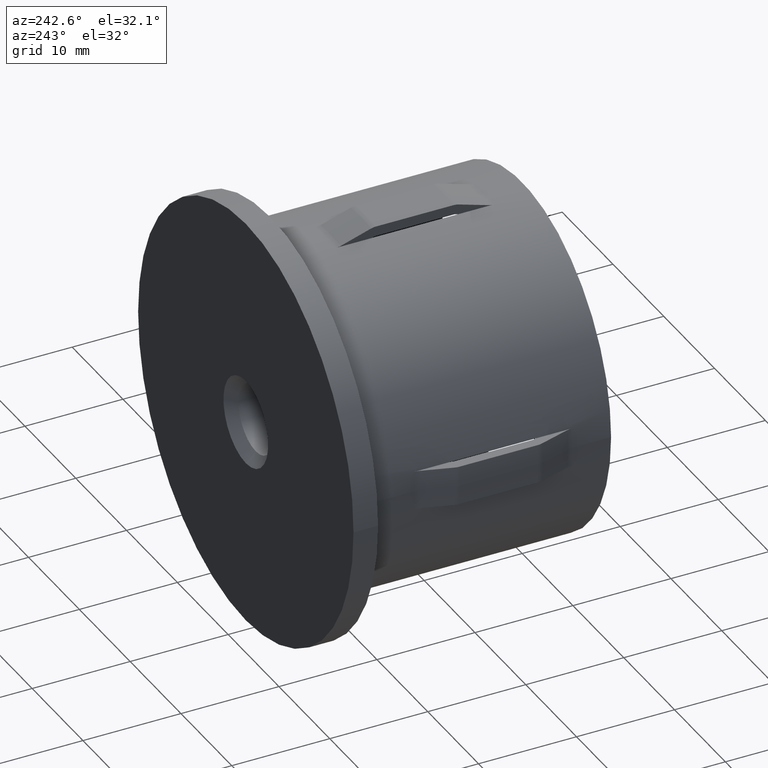
[diagram: clean part render]
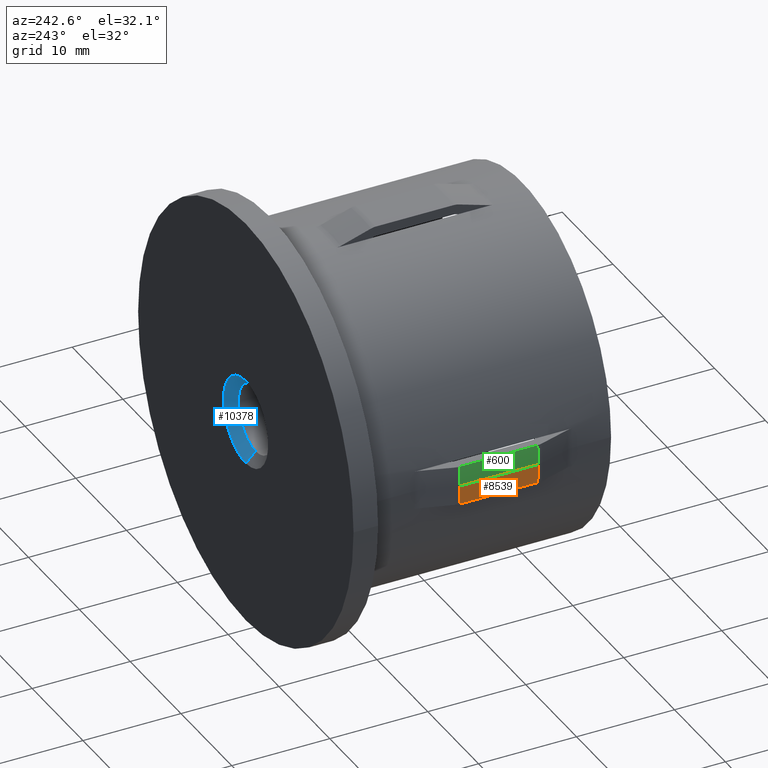
[diagram: same view with three faces highlighted in distinct colors, each labeled with its STEP entity id]
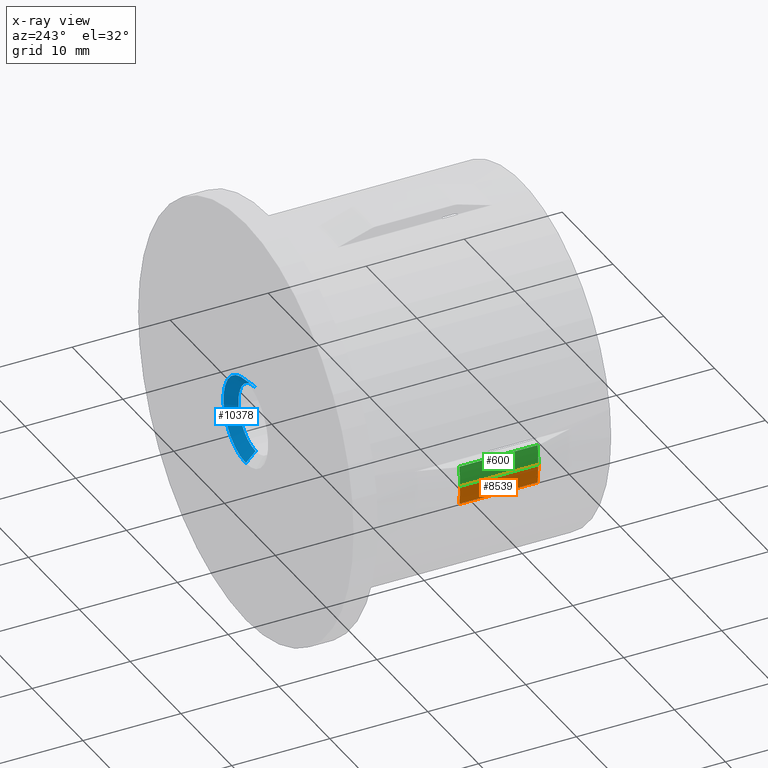
[diagram: x-ray of the same camera — body ghosted, the three highlighted faces saturated]
A machine part, auxiliary view with three faces highlighted in distinct colors.
The next image is the same camera in x-ray (body ghosted, the three faces saturated) — at least one of them is partly hidden behind the body in this view.
Their STEP definitions:

[orange] entity #8539 — the highlighted cylindrical surface (partial cylindrical patch) has radius 18.6 mm, axis along (-0, 1, -0).
#389 = DIRECTION ( 'NONE',  ( -1.714505518806297100E-016, 1.000000000000000000, -0.0000000000000000000 ) ) ;
#692 = CIRCLE ( 'NONE', #6778, 18.60000000000000100 ) ;
#855 = CARTESIAN_POINT ( 'NONE',  ( -18.49216050114209500, 20.00000000000000000, -2.000000000000000000 ) ) ;
#1584 = CARTESIAN_POINT ( 'NONE',  ( -18.59999999999999800, 28.19999999999999600, 0.0000000000000000000 ) ) ;
#1776 = DIRECTION ( 'NONE',  ( -1.000000000000000000, -1.865294060190115500E-016, 0.0000000000000000000 ) ) ;
#1817 = AXIS2_PLACEMENT_3D ( 'NONE', #9284, #15569, #1776 ) ;
#2103 = DIRECTION ( 'NONE',  ( -0.0000000000000000000, -1.000000000000000000, -0.0000000000000000000 ) ) ;
#2144 = AXIS2_PLACEMENT_3D ( 'NONE', #5916, #8446, #14865 ) ;
#2698 = CYLINDRICAL_SURFACE ( 'NONE', #2144, 18.59999999999999800 ) ;
#2854 = EDGE_CURVE ( 'NONE', #12684, #11023, #13670, .T. ) ;
#3473 = FACE_OUTER_BOUND ( 'NONE', #8141, .T. ) ;
#4294 = VERTEX_POINT ( 'NONE', #15205 ) ;
#4572 = ORIENTED_EDGE ( 'NONE', *, *, #11466, .F. ) ;
#4832 = VECTOR ( 'NONE', #2103, 1000.000000000000000 ) ;
#5916 = CARTESIAN_POINT ( 'NONE',  ( -2.449293598294708900E-016, 28.19999999999999900, 0.0000000000000000000 ) ) ;
#6154 = VECTOR ( 'NONE', #389, 1000.000000000000000 ) ;
#6778 = AXIS2_PLACEMENT_3D ( 'NONE', #15107, #15279, #8969 ) ;
#6918 = CARTESIAN_POINT ( 'NONE',  ( -18.49216050114209500, 7.999999999999992900, -2.000000000000000000 ) ) ;
#8141 = EDGE_LOOP ( 'NONE', ( #10331, #11269, #4572, #15637 ) ) ;
#8338 = EDGE_CURVE ( 'NONE', #11023, #4294, #14669, .T. ) ;
#8446 = DIRECTION ( 'NONE',  ( -1.714505518806297100E-016, 1.000000000000000000, -0.0000000000000000000 ) ) ;
#8539 = ADVANCED_FACE ( 'NONE', ( #3473 ), #2698, .T. ) ;
#8969 = DIRECTION ( 'NONE',  ( -1.000000000000000000, -1.865294060190115000E-016, 0.0000000000000000000 ) ) ;
#9284 = CARTESIAN_POINT ( 'NONE',  ( 3.218371788159250600E-015, 7.999999999999992900, 0.0000000000000000000 ) ) ;
#9501 = LINE ( 'NONE', #1584, #6154 ) ;
#9790 = CARTESIAN_POINT ( 'NONE',  ( -18.49216050114209500, 15.99999999999999300, -2.000000000000000000 ) ) ;
#10331 = ORIENTED_EDGE ( 'NONE', *, *, #8338, .T. ) ;
#10974 = EDGE_CURVE ( 'NONE', #4294, #12640, #9501, .T. ) ;
#11023 = VERTEX_POINT ( 'NONE', #6918 ) ;
#11269 = ORIENTED_EDGE ( 'NONE', *, *, #10974, .T. ) ;
#11466 = EDGE_CURVE ( 'NONE', #12684, #12640, #692, .T. ) ;
#12640 = VERTEX_POINT ( 'NONE', #14468 ) ;
#12684 = VERTEX_POINT ( 'NONE', #9790 ) ;
#13670 = LINE ( 'NONE', #855, #4832 ) ;
#14468 = CARTESIAN_POINT ( 'NONE',  ( -18.59999999999999800, 15.99999999999999300, 0.0000000000000000000 ) ) ;
#14669 = CIRCLE ( 'NONE', #1817, 18.59999999999999800 ) ;
#14865 = DIRECTION ( 'NONE',  ( -1.000000000000000000, -1.865294060190115500E-016, 0.0000000000000000000 ) ) ;
#15107 = CARTESIAN_POINT ( 'NONE',  ( 1.846767373114211700E-015, 15.99999999999999600, 0.0000000000000000000 ) ) ;
#15205 = CARTESIAN_POINT ( 'NONE',  ( -18.59999999999999400, 7.999999999999989300, 0.0000000000000000000 ) ) ;
#15279 = DIRECTION ( 'NONE',  ( -1.714505518806297100E-016, 1.000000000000000000, -0.0000000000000000000 ) ) ;
#15569 = DIRECTION ( 'NONE',  ( -1.714505518806297100E-016, 1.000000000000000000, -0.0000000000000000000 ) ) ;
#15637 = ORIENTED_EDGE ( 'NONE', *, *, #2854, .T. ) ;

[blue] entity #10378 — the highlighted conical surface has half-angle 45 deg.
#66 = EDGE_CURVE ( 'NONE', #13186, #4601, #11563, .T. ) ;
#112 = FACE_OUTER_BOUND ( 'NONE', #8588, .T. ) ;
#187 = CARTESIAN_POINT ( 'NONE',  ( 0.0000000000000000000, 28.19999999999999600, 0.0000000000000000000 ) ) ;
#676 = CARTESIAN_POINT ( 'NONE',  ( 0.0000000000000000000, 27.19999999999998900, -3.399999999999987900 ) ) ;
#926 = AXIS2_PLACEMENT_3D ( 'NONE', #187, #16221, #3949 ) ;
#1140 = CARTESIAN_POINT ( 'NONE',  ( 5.388445916248347100E-016, 28.19999999999999600, -4.399999999999994100 ) ) ;
#1473 = CARTESIAN_POINT ( 'NONE',  ( 0.0000000000000000000, 27.19999999999998900, 0.0000000000000000000 ) ) ;
#2046 = AXIS2_PLACEMENT_3D ( 'NONE', #11468, #13943, #8834 ) ;
#3447 = LINE ( 'NONE', #9289, #13061 ) ;
#3949 = DIRECTION ( 'NONE',  ( 0.0000000000000000000, 0.0000000000000000000, 1.000000000000000000 ) ) ;
#4039 = DIRECTION ( 'NONE',  ( 0.0000000000000000000, 0.0000000000000000000, -1.000000000000000000 ) ) ;
#4323 = CARTESIAN_POINT ( 'NONE',  ( 0.0000000000000000000, 28.19999999999999600, 4.399999999999994100 ) ) ;
#4601 = VERTEX_POINT ( 'NONE', #7841 ) ;
#5177 = DIRECTION ( 'NONE',  ( -0.0000000000000000000, 1.000000000000000000, -0.0000000000000000000 ) ) ;
#5569 = CONICAL_SURFACE ( 'NONE', #926, 4.399999999999994100, 0.7853981633974473900 ) ;
#5788 = EDGE_CURVE ( 'NONE', #13654, #13552, #13217, .T. ) ;
#6363 = ORIENTED_EDGE ( 'NONE', *, *, #5788, .F. ) ;
#6852 = CARTESIAN_POINT ( 'NONE',  ( 4.163799117100986300E-016, 27.19999999999998900, 3.399999999999987900 ) ) ;
#7841 = CARTESIAN_POINT ( 'NONE',  ( 0.0000000000000000000, 28.19999999999999600, 4.399999999999994100 ) ) ;
#8588 = EDGE_LOOP ( 'NONE', ( #15421, #6363, #12908, #11028 ) ) ;
#8834 = DIRECTION ( 'NONE',  ( 1.000000000000000000, 0.0000000000000000000, 0.0000000000000000000 ) ) ;
#9289 = CARTESIAN_POINT ( 'NONE',  ( 5.388445916248347100E-016, 28.19999999999999600, -4.399999999999994100 ) ) ;
#9419 = DIRECTION ( 'NONE',  ( 0.0000000000000000000, 0.7071067811865482400, 0.7071067811865469100 ) ) ;
#9841 = EDGE_CURVE ( 'NONE', #13552, #13186, #3447, .T. ) ;
#10378 = ADVANCED_FACE ( 'NONE', ( #112 ), #5569, .F. ) ;
#10759 = DIRECTION ( 'NONE',  ( 8.659560562354926700E-017, 0.7071067811865482400, -0.7071067811865469100 ) ) ;
#11028 = ORIENTED_EDGE ( 'NONE', *, *, #66, .F. ) ;
#11468 = CARTESIAN_POINT ( 'NONE',  ( 0.0000000000000000000, 28.19999999999999600, 0.0000000000000000000 ) ) ;
#11563 = CIRCLE ( 'NONE', #2046, 4.399999999999995000 ) ;
#11820 = EDGE_CURVE ( 'NONE', #13654, #4601, #12822, .T. ) ;
#12822 = LINE ( 'NONE', #4323, #15370 ) ;
#12908 = ORIENTED_EDGE ( 'NONE', *, *, #11820, .T. ) ;
#13061 = VECTOR ( 'NONE', #10759, 999.9999999999998900 ) ;
#13186 = VERTEX_POINT ( 'NONE', #1140 ) ;
#13217 = CIRCLE ( 'NONE', #15057, 3.399999999999987900 ) ;
#13552 = VERTEX_POINT ( 'NONE', #676 ) ;
#13654 = VERTEX_POINT ( 'NONE', #6852 ) ;
#13943 = DIRECTION ( 'NONE',  ( 1.714505518806297100E-016, -1.000000000000000000, 0.0000000000000000000 ) ) ;
#15057 = AXIS2_PLACEMENT_3D ( 'NONE', #1473, #5177, #4039 ) ;
#15370 = VECTOR ( 'NONE', #9419, 999.9999999999998900 ) ;
#15421 = ORIENTED_EDGE ( 'NONE', *, *, #9841, .F. ) ;
#16221 = DIRECTION ( 'NONE',  ( -0.0000000000000000000, 1.000000000000000000, -0.0000000000000000000 ) ) ;

[green] entity #600 — the highlighted cylindrical surface (partial cylindrical patch) has radius 18.6 mm, axis along (-0, 1, -0).
#305 = DIRECTION ( 'NONE',  ( -1.714505518806297100E-016, 1.000000000000000000, -0.0000000000000000000 ) ) ;
#389 = DIRECTION ( 'NONE',  ( -1.714505518806297100E-016, 1.000000000000000000, -0.0000000000000000000 ) ) ;
#551 = EDGE_LOOP ( 'NONE', ( #1607, #9645, #11364, #8015 ) ) ;
#600 = ADVANCED_FACE ( 'NONE', ( #3515 ), #1932, .T. ) ;
#1196 = DIRECTION ( 'NONE',  ( -1.714505518806297100E-016, 1.000000000000000000, -0.0000000000000000000 ) ) ;
#1584 = CARTESIAN_POINT ( 'NONE',  ( -18.59999999999999800, 28.19999999999999600, 0.0000000000000000000 ) ) ;
#1607 = ORIENTED_EDGE ( 'NONE', *, *, #10974, .F. ) ;
#1802 = AXIS2_PLACEMENT_3D ( 'NONE', #5842, #4422, #14516 ) ;
#1818 = CIRCLE ( 'NONE', #8636, 18.59999999999999800 ) ;
#1932 = CYLINDRICAL_SURFACE ( 'NONE', #1802, 18.59999999999999800 ) ;
#2811 = CARTESIAN_POINT ( 'NONE',  ( 3.218371788159250600E-015, 7.999999999999992900, 0.0000000000000000000 ) ) ;
#2944 = VERTEX_POINT ( 'NONE', #7495 ) ;
#3515 = FACE_OUTER_BOUND ( 'NONE', #551, .T. ) ;
#4294 = VERTEX_POINT ( 'NONE', #15205 ) ;
#4422 = DIRECTION ( 'NONE',  ( -1.714505518806297100E-016, 1.000000000000000000, -0.0000000000000000000 ) ) ;
#5842 = CARTESIAN_POINT ( 'NONE',  ( -2.449293598294708900E-016, 28.19999999999999900, 0.0000000000000000000 ) ) ;
#6150 = DIRECTION ( 'NONE',  ( -1.000000000000000000, -1.865294060190115000E-016, 0.0000000000000000000 ) ) ;
#6154 = VECTOR ( 'NONE', #389, 1000.000000000000000 ) ;
#6260 = CARTESIAN_POINT ( 'NONE',  ( 1.846767373114211700E-015, 15.99999999999999600, 0.0000000000000000000 ) ) ;
#6539 = EDGE_CURVE ( 'NONE', #4294, #2944, #1818, .T. ) ;
#7495 = CARTESIAN_POINT ( 'NONE',  ( -18.49216050114209500, 7.999999999999992900, 2.000000000000000000 ) ) ;
#7885 = VERTEX_POINT ( 'NONE', #15286 ) ;
#8015 = ORIENTED_EDGE ( 'NONE', *, *, #8128, .F. ) ;
#8128 = EDGE_CURVE ( 'NONE', #12640, #7885, #14282, .T. ) ;
#8636 = AXIS2_PLACEMENT_3D ( 'NONE', #2811, #305, #9275 ) ;
#9275 = DIRECTION ( 'NONE',  ( -1.000000000000000000, -1.865294060190115500E-016, 0.0000000000000000000 ) ) ;
#9501 = LINE ( 'NONE', #1584, #6154 ) ;
#9645 = ORIENTED_EDGE ( 'NONE', *, *, #6539, .T. ) ;
#10543 = AXIS2_PLACEMENT_3D ( 'NONE', #6260, #1196, #6150 ) ;
#10663 = CARTESIAN_POINT ( 'NONE',  ( -18.49216050114209500, 20.00000000000000000, 2.000000000000000000 ) ) ;
#10974 = EDGE_CURVE ( 'NONE', #4294, #12640, #9501, .T. ) ;
#11364 = ORIENTED_EDGE ( 'NONE', *, *, #11618, .F. ) ;
#11452 = VECTOR ( 'NONE', #14456, 1000.000000000000000 ) ;
#11618 = EDGE_CURVE ( 'NONE', #7885, #2944, #14784, .T. ) ;
#12640 = VERTEX_POINT ( 'NONE', #14468 ) ;
#14282 = CIRCLE ( 'NONE', #10543, 18.60000000000000100 ) ;
#14456 = DIRECTION ( 'NONE',  ( -0.0000000000000000000, -1.000000000000000000, -0.0000000000000000000 ) ) ;
#14468 = CARTESIAN_POINT ( 'NONE',  ( -18.59999999999999800, 15.99999999999999300, 0.0000000000000000000 ) ) ;
#14516 = DIRECTION ( 'NONE',  ( -1.000000000000000000, -1.865294060190115500E-016, 0.0000000000000000000 ) ) ;
#14784 = LINE ( 'NONE', #10663, #11452 ) ;
#15205 = CARTESIAN_POINT ( 'NONE',  ( -18.59999999999999400, 7.999999999999989300, 0.0000000000000000000 ) ) ;
#15286 = CARTESIAN_POINT ( 'NONE',  ( -18.49216050114209500, 15.99999999999999300, 2.000000000000000000 ) ) ;